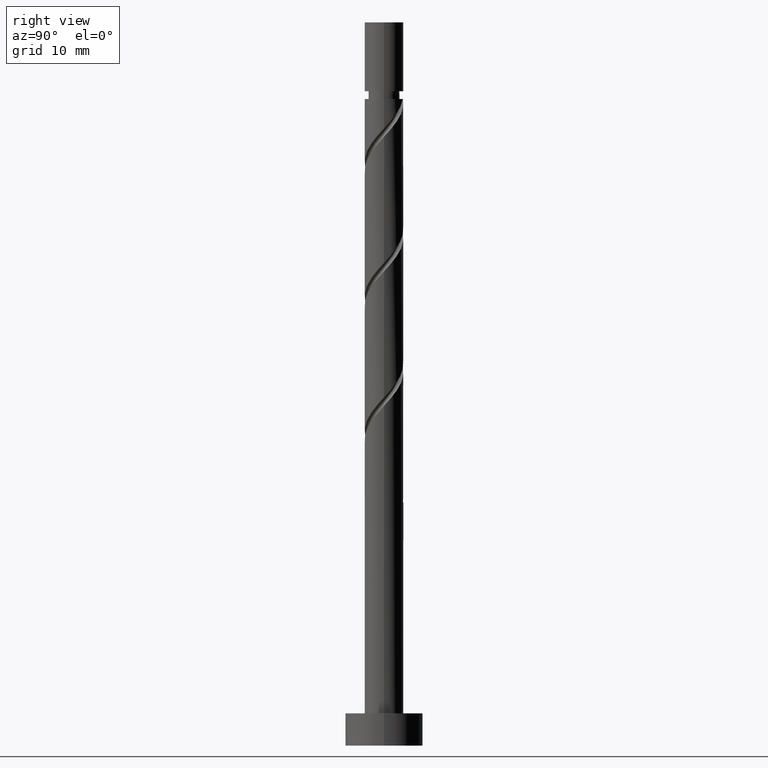
[diagram: clean part render]
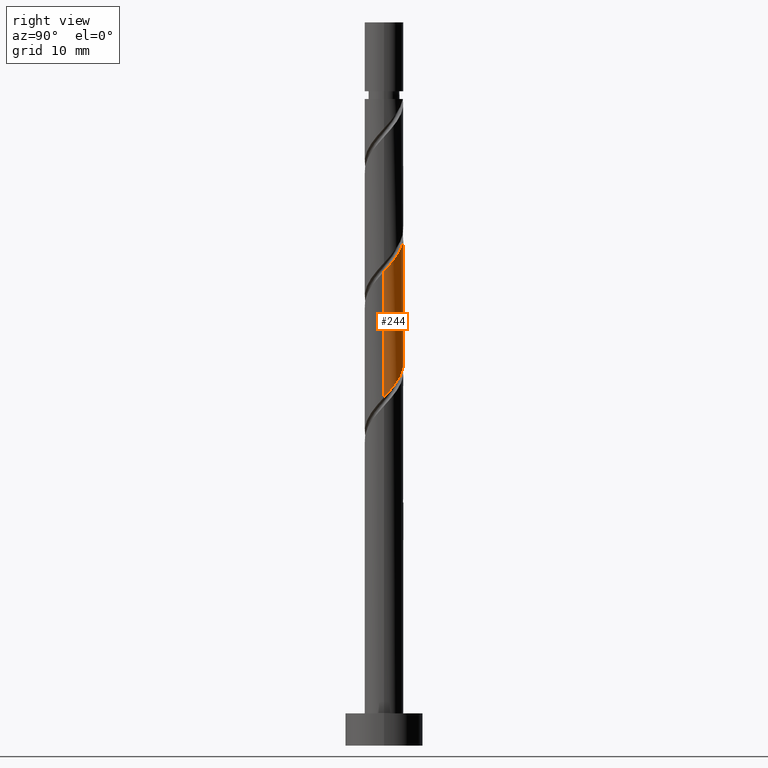
[diagram: same view with one face highlighted and labeled with its STEP entity id]
A machine part, right view. The second image highlights one B-rep face of the part: STEP entity #244.
In plain terms, the highlighted cylindrical surface (edge-blend (fillet) strip) has radius 3 mm, axis along (-0, -0, -1).
Its self-contained STEP definition (entity closure, byte-faithful):
#70 = EDGE_CURVE ( 'NONE', #690, #311, #344, .T. ) ;
#74 = FACE_OUTER_BOUND ( 'NONE', #260, .T. ) ;
#75 = CARTESIAN_POINT ( 'NONE',  ( -2.729413328510882586, 1.245111594254577181, 82.43567249787845697 ) ) ;
#91 = CARTESIAN_POINT ( 'NONE',  ( 2.980586974261064004, 0.3407363920471073726, 54.31067249787847828 ) ) ;
#107 = CARTESIAN_POINT ( 'NONE',  ( -3.000000000000000000, 1.904124053467143397E-15, 64.35047493934872875 ) ) ;
#159 = ORIENTED_EDGE ( 'NONE', *, *, #528, .F. ) ;
#191 = CARTESIAN_POINT ( 'NONE',  ( -2.211065689225171660, 2.027606598413817185, 81.39400583121179977 ) ) ;
#200 = CARTESIAN_POINT ( 'NONE',  ( -1.062642716818108513, 2.845445682986359248, 79.83150583121181398 ) ) ;
#207 = DIRECTION ( 'NONE',  ( -0.000000000000000000, -0.000000000000000000, -1.000000000000000000 ) ) ;
#209 = CARTESIAN_POINT ( 'NONE',  ( 0.8128149918040519228, 2.926619631508484698, 77.74817249787845697 ) ) ;
#244 = ADVANCED_FACE ( 'NONE', ( #74 ), #1412, .T. ) ;
#246 = VERTEX_POINT ( 'NONE', #1167 ) ;
#260 = EDGE_LOOP ( 'NONE', ( #159, #784, #752, #827 ) ) ;
#299 = CARTESIAN_POINT ( 'NONE',  ( -2.611625341554440372, 1.476283534877583792, 62.64400583121179977 ) ) ;
#310 = CARTESIAN_POINT ( 'NONE',  ( 2.377805000122530821, 1.889924352937061292, 75.66483916454514258 ) ) ;
#311 = VERTEX_POINT ( 'NONE', #1201 ) ;
#337 = CARTESIAN_POINT ( 'NONE',  ( 3.000000000000000444, -2.308937828613701205E-15, 53.93380827268205735 ) ) ;
#344 = LINE ( 'NONE', #469, #356 ) ;
#356 = VECTOR ( 'NONE', #207, 1000.000000000000000 ) ;
#397 = CARTESIAN_POINT ( 'NONE',  ( 0.1313422077098337915, 3.034554317013645974, 58.99817249787846407 ) ) ;
#401 = CARTESIAN_POINT ( 'NONE',  ( 1.476283534877584236, 2.611625341554440372, 57.43567249787847118 ) ) ;
#417 = DIRECTION ( 'NONE',  ( -0.000000000000000000, -0.000000000000000000, -1.000000000000000000 ) ) ;
#428 = CARTESIAN_POINT ( 'NONE',  ( -1.677408196705099552, 2.532207025513276477, 61.08150583121179267 ) ) ;
#437 = CARTESIAN_POINT ( 'NONE',  ( -2.845445682986353475, 1.062642716818107180, 63.16483916454511416 ) ) ;
#445 = DIRECTION ( 'NONE',  ( -1.000000000000000000, 0.000000000000000000, 0.000000000000000000 ) ) ;
#469 = CARTESIAN_POINT ( 'NONE',  ( 3.000000000000000444, 3.673940397442060361E-16, 112.0000000000000000 ) ) ;
#472 = CARTESIAN_POINT ( 'NONE',  ( 2.845445682986359692, 1.062642716818107846, 74.62317249787847118 ) ) ;
#522 = CARTESIAN_POINT ( 'NONE',  ( -3.000000000000000444, 0.000000000000000000, 112.0000000000000000 ) ) ;
#528 = EDGE_CURVE ( 'NONE', #690, #246, #839, .T. ) ;
#564 = CARTESIAN_POINT ( 'NONE',  ( 3.000000000000004441, 0.3015113445777652390, 73.77184129848272676 ) ) ;
#654 = CARTESIAN_POINT ( 'NONE',  ( 2.532207025513276477, 1.677408196705099108, 55.87317249787845697 ) ) ;
#659 = CARTESIAN_POINT ( 'NONE',  ( -3.000000000000000000, 1.904124053467143397E-15, 64.35047493934872875 ) ) ;
#676 = DIRECTION ( 'NONE',  ( -0.000000000000000000, -0.000000000000000000, -1.000000000000000000 ) ) ;
#678 = CARTESIAN_POINT ( 'NONE',  ( 1.677408196705103327, 2.532207025513280030, 76.70650583121181398 ) ) ;
#689 = CARTESIAN_POINT ( 'NONE',  ( -3.000000000000004885, 0.1709212123393120675, 83.66469230053426998 ) ) ;
#690 = VERTEX_POINT ( 'NONE', #1332 ) ;
#752 = ORIENTED_EDGE ( 'NONE', *, *, #1135, .F. ) ;
#769 = CARTESIAN_POINT ( 'NONE',  ( 2.211065689225168551, 2.027606598413812744, 56.39400583121181398 ) ) ;
#784 = ORIENTED_EDGE ( 'NONE', *, *, #70, .T. ) ;
#792 = CARTESIAN_POINT ( 'NONE',  ( -0.8128149918040490363, 2.926619631508479813, 60.03983916454513547 ) ) ;
#800 = CARTESIAN_POINT ( 'NONE',  ( -1.476283534877585346, 2.611625341554445701, 80.35233916454514258 ) ) ;
#805 = EDGE_CURVE ( 'NONE', #246, #1486, #1523, .T. ) ;
#826 = CARTESIAN_POINT ( 'NONE',  ( -0.1313422077098326812, 3.034554317013650859, 78.78983916454511416 ) ) ;
#827 = ORIENTED_EDGE ( 'NONE', *, *, #805, .F. ) ;
#839 =( BOUNDED_CURVE ( )  B_SPLINE_CURVE ( 2, ( #921, #564, #1569, #472, #1554, #310, #954, #678, #1311, #209, #1447, #826, #1415, #200, #800, #1290, #191, #1168, #75, #1046, #1543, #689, #1216 ),
 .UNSPECIFIED., .F., .T. ) 
 B_SPLINE_CURVE_WITH_KNOTS ( ( 3, 2, 2, 2, 2, 2, 2, 2, 2, 2, 2, 3 ),
 ( 0.4295322023138553047, 0.4375000000000000000, 0.4499999999999999556, 0.4625000000000000222, 0.4749999999999999778, 0.4875000000000000444, 0.5000000000000000000, 0.5124999999999999556, 0.5250000000000000222, 0.5374999999999999778, 0.5500000000000000444, 0.5545322023138549161 ),
 .UNSPECIFIED. ) 
 CURVE ( )  GEOMETRIC_REPRESENTATION_ITEM ( )  RATIONAL_B_SPLINE_CURVE ( ( 0.9039174447099382892, 0.9019565955404678093, 0.9090909090909161661, 0.8978984914501322301, 0.9090909090909161661, 0.8978984914501322301, 0.9090909090909161661, 0.8978984914501322301, 0.9090909090909161661, 0.8978984914501322301, 0.9090909090909161661, 0.8978984914501322301, 0.9090909090909161661, 0.8978984914501322301, 0.9090909090909161661, 0.8978984914501322301, 0.9090909090909161661, 0.8978984914501322301, 0.9090909090909161661, 0.8978984914501322301, 0.9090909090909161661, 0.9050328050005806979, 0.9039174447099384002 ) ) 
 REPRESENTATION_ITEM ( '' )  );
#886 = CARTESIAN_POINT ( 'NONE',  ( 0.5969924622639714018, 2.940000000000001279, 58.47733916454514258 ) ) ;
#912 = CARTESIAN_POINT ( 'NONE',  ( -1.245111594254574738, 2.729413328510879477, 60.56067249787848539 ) ) ;
#921 = CARTESIAN_POINT ( 'NONE',  ( 3.000000000000005329, 6.896827280274645464E-16, 73.43753672307488500 ) ) ;
#954 = CARTESIAN_POINT ( 'NONE',  ( 2.027606598413817185, 2.211065689225170772, 76.18567249787848539 ) ) ;
#1027 = CARTESIAN_POINT ( 'NONE',  ( -2.940000000000001279, 0.5969924622639708467, 63.68567249787845697 ) ) ;
#1030 = CARTESIAN_POINT ( 'NONE',  ( -2.027606598413813632, 2.211065689225168107, 61.60233916454514258 ) ) ;
#1046 = CARTESIAN_POINT ( 'NONE',  ( -2.926619631508484698, 0.8128149918040513677, 82.95650583121179977 ) ) ;
#1056 = CARTESIAN_POINT ( 'NONE',  ( 2.926619631508480701, 0.8128149918040487032, 54.83150583121179977 ) ) ;
#1068 =( BOUNDED_CURVE ( )  B_SPLINE_CURVE ( 2, ( #659, #1146, #1027, #437, #299, #1274, #1030, #428, #912, #792, #1505, #397, #886, #1381, #401, #1386, #769, #654, #1142, #1056, #91, #1437, #337 ),
 .UNSPECIFIED., .F., .T. ) 
 B_SPLINE_CURVE_WITH_KNOTS ( ( 3, 2, 2, 2, 2, 2, 2, 2, 2, 2, 2, 3 ),
 ( 0.6795322023138551382, 0.6875000000000000000, 0.6999999999999999556, 0.7125000000000000222, 0.7249999999999999778, 0.7375000000000000444, 0.7500000000000000000, 0.7624999999999999556, 0.7750000000000000222, 0.7874999999999999778, 0.8000000000000000444, 0.8045322023138553602 ),
 .UNSPECIFIED. ) 
 CURVE ( )  GEOMETRIC_REPRESENTATION_ITEM ( )  RATIONAL_B_SPLINE_CURVE ( ( 0.9039174447099322940, 0.9019565955404614810, 0.9090909090909098378, 0.8978984914501261239, 0.9090909090909098378, 0.8978984914501261239, 0.9090909090909098378, 0.8978984914501261239, 0.9090909090909098378, 0.8978984914501261239, 0.9090909090909098378, 0.8978984914501261239, 0.9090909090909098378, 0.8978984914501261239, 0.9090909090909098378, 0.8978984914501261239, 0.9090909090909098378, 0.8978984914501261239, 0.9090909090909098378, 0.8978984914501261239, 0.9090909090909098378, 0.9050328050005741476, 0.9039174447099320719 ) ) 
 REPRESENTATION_ITEM ( '' )  );
#1135 = EDGE_CURVE ( 'NONE', #1486, #311, #1068, .T. ) ;
#1142 = CARTESIAN_POINT ( 'NONE',  ( 2.729413328510879477, 1.245111594254574072, 55.35233916454513547 ) ) ;
#1146 = CARTESIAN_POINT ( 'NONE',  ( -3.000000000000000888, 0.3015113445777597989, 64.01617036394087279 ) ) ;
#1167 = CARTESIAN_POINT ( 'NONE',  ( -3.000000000000005773, 4.497930834961724617E-16, 83.85420338974152799 ) ) ;
#1168 = CARTESIAN_POINT ( 'NONE',  ( -2.532207025513280918, 1.677408196705102883, 81.91483916454512837 ) ) ;
#1180 = VECTOR ( 'NONE', #417, 1000.000000000000000 ) ;
#1201 = CARTESIAN_POINT ( 'NONE',  ( 3.000000000000000000, -2.308937828613701205E-15, 53.93380827268205735 ) ) ;
#1205 = AXIS2_PLACEMENT_3D ( 'NONE', #1289, #676, #445 ) ;
#1216 = CARTESIAN_POINT ( 'NONE',  ( -3.000000000000005773, 4.497930834961724617E-16, 83.85420338974152799 ) ) ;
#1274 = CARTESIAN_POINT ( 'NONE',  ( -2.377805000122525936, 1.889924352937058849, 62.12317249787846407 ) ) ;
#1289 = CARTESIAN_POINT ( 'NONE',  ( 0.000000000000000000, 0.000000000000000000, 112.0000000000000000 ) ) ;
#1290 = CARTESIAN_POINT ( 'NONE',  ( -1.889924352937061736, 2.377805000122530821, 80.87317249787845697 ) ) ;
#1311 = CARTESIAN_POINT ( 'NONE',  ( 1.245111594254577847, 2.729413328510882142, 77.22733916454514258 ) ) ;
#1332 = CARTESIAN_POINT ( 'NONE',  ( 3.000000000000005329, 6.896827280274645464E-16, 73.43753672307488500 ) ) ;
#1381 = CARTESIAN_POINT ( 'NONE',  ( 1.062642716818107846, 2.845445682986353031, 57.95650583121179267 ) ) ;
#1386 = CARTESIAN_POINT ( 'NONE',  ( 1.889924352937059737, 2.377805000122525936, 56.91483916454512126 ) ) ;
#1412 = CYLINDRICAL_SURFACE ( 'NONE', #1205, 3.000000000000000444 ) ;
#1415 = CARTESIAN_POINT ( 'NONE',  ( -0.5969924622639702916, 2.940000000000005720, 79.31067249787847118 ) ) ;
#1437 = CARTESIAN_POINT ( 'NONE',  ( 3.000000000000000444, 0.1709212123392938043, 54.12331936188935089 ) ) ;
#1447 = CARTESIAN_POINT ( 'NONE',  ( 0.3407363920471096486, 2.980586974261068445, 78.26900583121179977 ) ) ;
#1486 = VERTEX_POINT ( 'NONE', #107 ) ;
#1505 = CARTESIAN_POINT ( 'NONE',  ( -0.3407363920471077612, 2.980586974261063116, 59.51900583121180688 ) ) ;
#1523 = LINE ( 'NONE', #522, #1180 ) ;
#1543 = CARTESIAN_POINT ( 'NONE',  ( -2.980586974261068445, 0.3407363920471090379, 83.47733916454514258 ) ) ;
#1554 = CARTESIAN_POINT ( 'NONE',  ( 2.611625341554446145, 1.476283534877584902, 75.14400583121181398 ) ) ;
#1569 = CARTESIAN_POINT ( 'NONE',  ( 2.940000000000005720, 0.5969924622639704026, 74.10233916454512837 ) ) ;